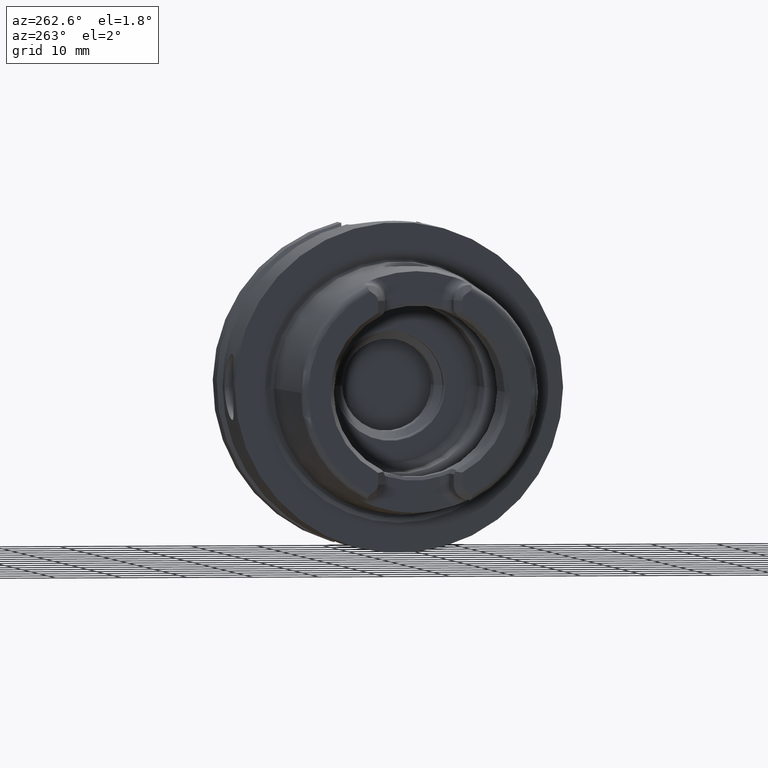
[diagram: clean part render]
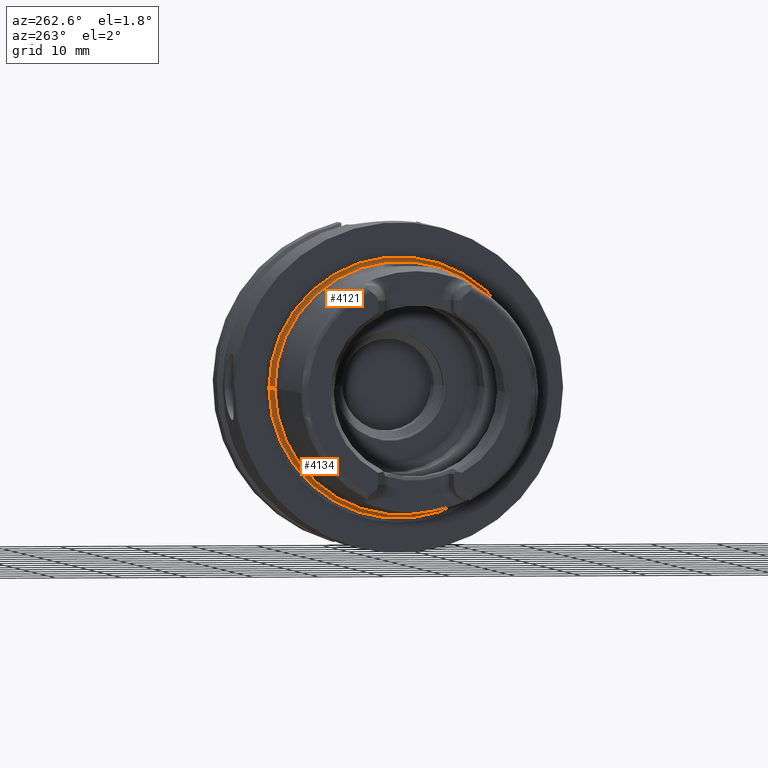
[diagram: same view with one multi-face feature highlighted, each face labeled with its STEP entity id]
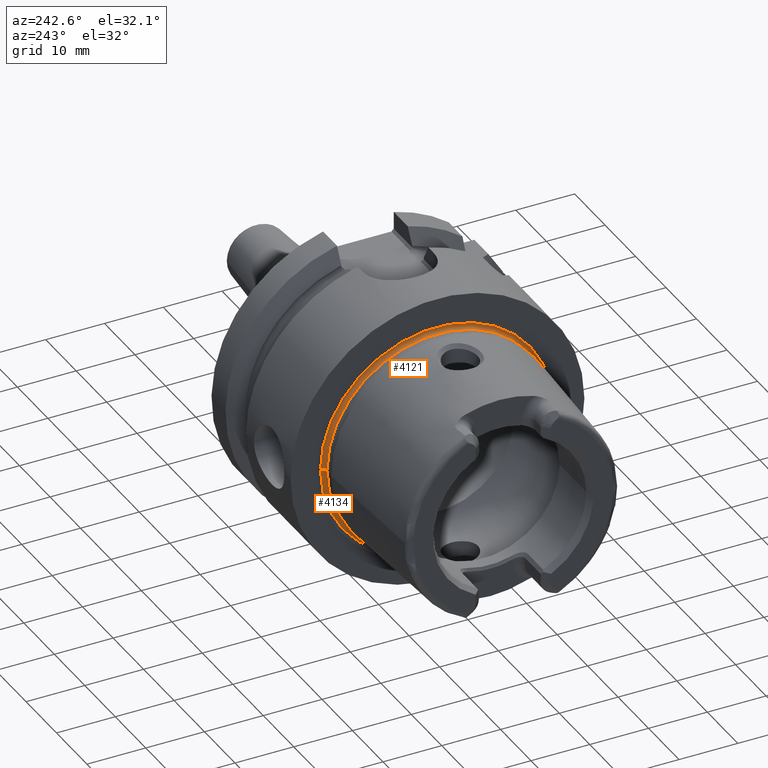
[diagram: same view with one multi-face feature highlighted, each face labeled with its STEP entity id]
A machine part, auxiliary view. The highlighted faces form ONE feature: a constant-radius fillet chain: 2 tangent blend faces with common blend radius 0.6 mm. The faces share edges in the B-rep.
A second angle (auxiliary view) of the same feature is appended — it is thin or edge-on in the first view.
Their STEP definitions:
[1] entity #4134 (Torus):
#829=CARTESIAN_POINT('',(-3.021696305237E-1,0.E0,0.E0));
#830=DIRECTION('',(-1.E0,0.E0,0.E0));
#831=DIRECTION('',(0.E0,1.E0,0.E0));
#832=AXIS2_PLACEMENT_3D('',#829,#830,#831);
#844=CARTESIAN_POINT('',(-3.021696305237E-1,1.95548E1,0.E0));
#845=DIRECTION('',(0.E0,0.E0,-1.E0));
#846=DIRECTION('',(9.304175679820E-1,3.665012267243E-1,0.E0));
#847=AXIS2_PLACEMENT_3D('',#844,#845,#846);
#849=CARTESIAN_POINT('',(-3.021696305237E-1,-1.95548E1,0.E0));
#850=DIRECTION('',(0.E0,0.E0,1.E0));
#851=DIRECTION('',(9.304175679820E-1,-3.665012267243E-1,0.E0));
#852=AXIS2_PLACEMENT_3D('',#849,#850,#851);
#854=CARTESIAN_POINT('',(2.560809102655E-1,0.E0,0.E0));
#855=DIRECTION('',(-1.E0,0.E0,0.E0));
#856=DIRECTION('',(0.E0,1.E0,0.E0));
#857=AXIS2_PLACEMENT_3D('',#854,#855,#856);
#2720=CARTESIAN_POINT('',(2.560809102655E-1,-1.977470073603E1,0.E0));
#2721=CARTESIAN_POINT('',(-3.021696305237E-1,-1.89548E1,0.E0));
#2722=VERTEX_POINT('',#2720);
#2723=VERTEX_POINT('',#2721);
#2728=CARTESIAN_POINT('',(2.560809102655E-1,1.977470073603E1,0.E0));
#2729=CARTESIAN_POINT('',(-3.021696305237E-1,1.89548E1,0.E0));
#2730=VERTEX_POINT('',#2728);
#2731=VERTEX_POINT('',#2729);
#4122=CARTESIAN_POINT('',(-3.021696305237E-1,0.E0,0.E0));
#4123=DIRECTION('',(-1.E0,0.E0,0.E0));
#4124=DIRECTION('',(0.E0,-1.E0,0.E0));
#4125=AXIS2_PLACEMENT_3D('',#4122,#4123,#4124);
#4126=TOROIDAL_SURFACE('',#4125,1.95548E1,6.E-1);
#4127=ORIENTED_EDGE('',*,*,#4115,.T.);
#4128=ORIENTED_EDGE('',*,*,#4089,.T.);
#4129=ORIENTED_EDGE('',*,*,#4112,.F.);
#4131=ORIENTED_EDGE('',*,*,#4130,.F.);
#4132=EDGE_LOOP('',(#4127,#4128,#4129,#4131));
#4133=FACE_OUTER_BOUND('',#4132,.F.);
#4134=ADVANCED_FACE('',(#4133),#4126,.F.);
#833=CIRCLE('',#832,1.89548E1);
#848=CIRCLE('',#847,6.E-1);
#853=CIRCLE('',#852,6.E-1);
#858=CIRCLE('',#857,1.977470073603E1);
#4089=EDGE_CURVE('',#2731,#2723,#833,.T.);
#4112=EDGE_CURVE('',#2722,#2723,#853,.T.);
#4115=EDGE_CURVE('',#2730,#2731,#848,.T.);
#4130=EDGE_CURVE('',#2730,#2722,#858,.T.);
[2] entity #4121 (Torus):
#834=CARTESIAN_POINT('',(-3.021696305237E-1,0.E0,0.E0));
#835=DIRECTION('',(-1.E0,0.E0,0.E0));
#836=DIRECTION('',(0.E0,-1.E0,0.E0));
#837=AXIS2_PLACEMENT_3D('',#834,#835,#836);
#839=CARTESIAN_POINT('',(2.560809102655E-1,0.E0,0.E0));
#840=DIRECTION('',(-1.E0,0.E0,0.E0));
#841=DIRECTION('',(0.E0,-1.E0,0.E0));
#842=AXIS2_PLACEMENT_3D('',#839,#840,#841);
#844=CARTESIAN_POINT('',(-3.021696305237E-1,1.95548E1,0.E0));
#845=DIRECTION('',(0.E0,0.E0,-1.E0));
#846=DIRECTION('',(9.304175679820E-1,3.665012267243E-1,0.E0));
#847=AXIS2_PLACEMENT_3D('',#844,#845,#846);
#849=CARTESIAN_POINT('',(-3.021696305237E-1,-1.95548E1,0.E0));
#850=DIRECTION('',(0.E0,0.E0,1.E0));
#851=DIRECTION('',(9.304175679820E-1,-3.665012267243E-1,0.E0));
#852=AXIS2_PLACEMENT_3D('',#849,#850,#851);
#2720=CARTESIAN_POINT('',(2.560809102655E-1,-1.977470073603E1,0.E0));
#2721=CARTESIAN_POINT('',(-3.021696305237E-1,-1.89548E1,0.E0));
#2722=VERTEX_POINT('',#2720);
#2723=VERTEX_POINT('',#2721);
#2728=CARTESIAN_POINT('',(2.560809102655E-1,1.977470073603E1,0.E0));
#2729=CARTESIAN_POINT('',(-3.021696305237E-1,1.89548E1,0.E0));
#2730=VERTEX_POINT('',#2728);
#2731=VERTEX_POINT('',#2729);
#4107=CARTESIAN_POINT('',(-3.021696305237E-1,0.E0,0.E0));
#4108=DIRECTION('',(-1.E0,0.E0,0.E0));
#4109=DIRECTION('',(0.E0,1.E0,0.E0));
#4110=AXIS2_PLACEMENT_3D('',#4107,#4108,#4109);
#4111=TOROIDAL_SURFACE('',#4110,1.95548E1,6.E-1);
#4113=ORIENTED_EDGE('',*,*,#4112,.T.);
#4114=ORIENTED_EDGE('',*,*,#4102,.T.);
#4116=ORIENTED_EDGE('',*,*,#4115,.F.);
#4118=ORIENTED_EDGE('',*,*,#4117,.F.);
#4119=EDGE_LOOP('',(#4113,#4114,#4116,#4118));
#4120=FACE_OUTER_BOUND('',#4119,.F.);
#4121=ADVANCED_FACE('',(#4120),#4111,.F.);
#838=CIRCLE('',#837,1.89548E1);
#843=CIRCLE('',#842,1.977470073603E1);
#848=CIRCLE('',#847,6.E-1);
#853=CIRCLE('',#852,6.E-1);
#4102=EDGE_CURVE('',#2723,#2731,#838,.T.);
#4112=EDGE_CURVE('',#2722,#2723,#853,.T.);
#4115=EDGE_CURVE('',#2730,#2731,#848,.T.);
#4117=EDGE_CURVE('',#2722,#2730,#843,.T.);